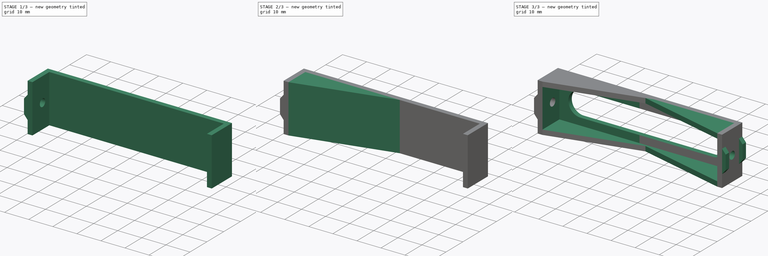
[diagram: build sequence overview — one tinted view per stage of 3, left to right]
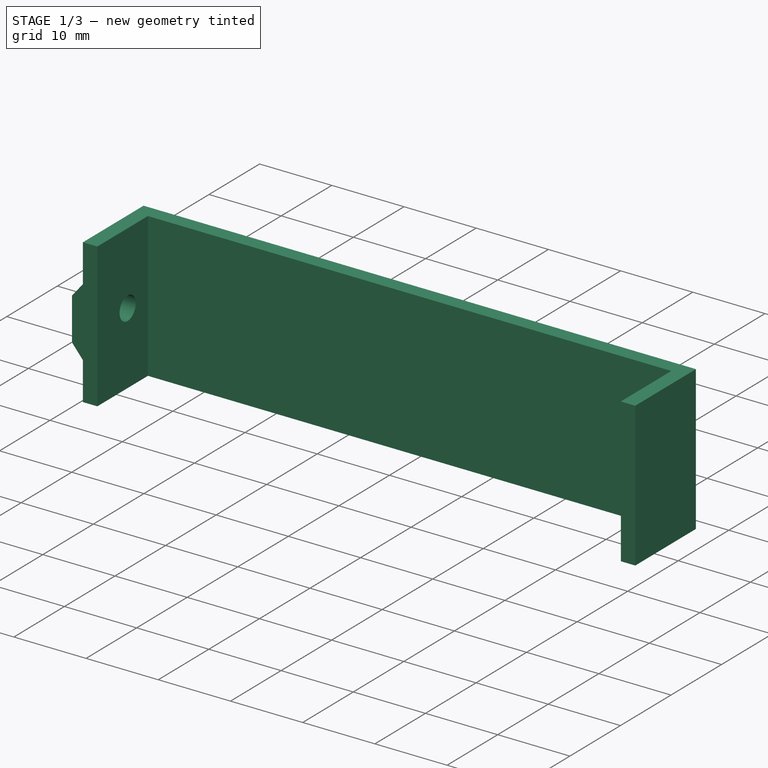
[diagram: stage 1 of 3 — iso view after this stage's code; geometry added in this stage tinted green]
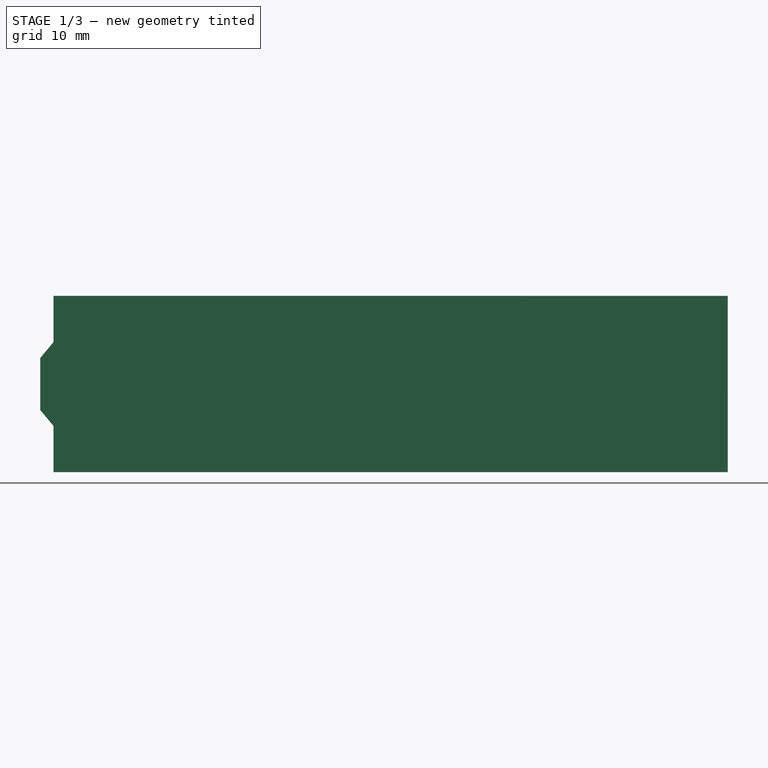
[diagram: stage 1 of 3 — front view after this stage's code; geometry added in this stage tinted green]
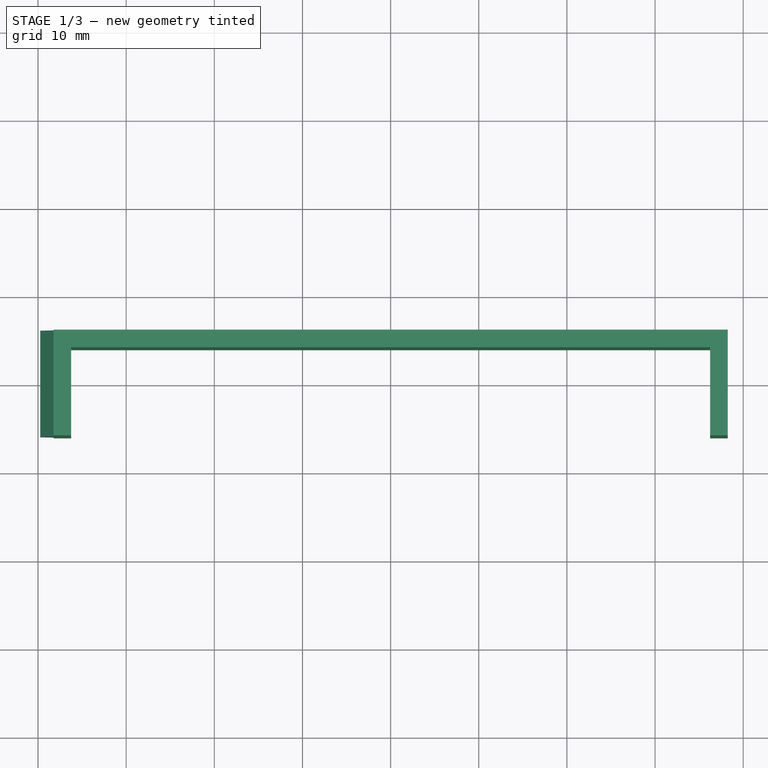
[diagram: stage 1 of 3 — top view after this stage's code; geometry added in this stage tinted green]
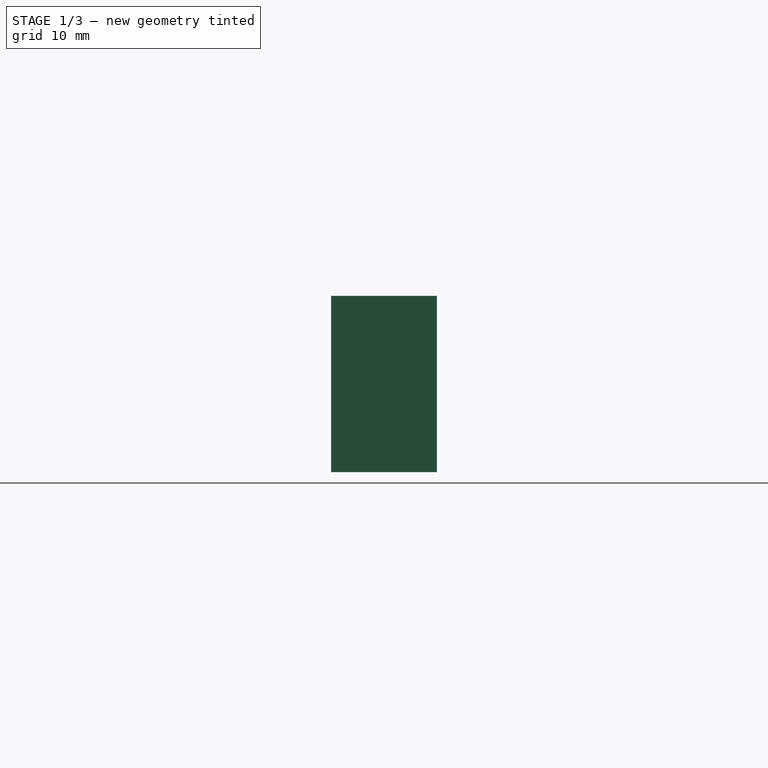
[diagram: stage 1 of 3 — right view after this stage's code; geometry added in this stage tinted green]
FCSTD DOCUMENT  (FreeCAD 1.1R44874 (Git))
Label: limitador
License: All rights reserved
LicenseURL: https://en.wikipedia.org/wiki/All_rights_reserved
objects: Sketcher::SketchObject×7, PartDesign::Pocket×4, PartDesign::Pad×3, PartDesign::Mirrored×1, PartDesign::Body×1, App::Point×1
note: 38 computed .brp shape members not serialized (recipe doc carries the construction recipe); baked Part::Feature solids carry a one-line shape summary decoded from their .brp

FEATURE [Sketcher::SketchObject] Sketch
  ArcFitTolerance = 0
  AttachmentSupport = -> [XY_Plane]
  ExternalTypes = [0]
  FullyConstrained = true
  MakeInternals = false
  MapMode = 5
  _ExternalGeoVersion = 0
  sketch-geometry (9):
    g0: LineSegment StartX=-36.25 StartY=-6 StartZ=0 EndX=-38.25 EndY=-6 EndZ=0
    g1: LineSegment StartX=-38.25 StartY=-6 StartZ=0 EndX=-38.25 EndY=6 EndZ=0
    g2: LineSegment StartX=-38.25 StartY=6 StartZ=0 EndX=38.25 EndY=6 EndZ=0
    g3: LineSegment StartX=38.25 StartY=6 StartZ=0 EndX=38.25 EndY=-6 EndZ=0
    g4: LineSegment StartX=38.25 StartY=-6 StartZ=0 EndX=36.25 EndY=-6 EndZ=0
    g5: LineSegment StartX=36.25 StartY=-6 StartZ=0 EndX=36.25 EndY=4 EndZ=0
    g6: LineSegment StartX=36.25 StartY=4 StartZ=0 EndX=-36.25 EndY=4 EndZ=0
    g7: LineSegment StartX=-36.25 StartY=4 StartZ=0 EndX=-36.25 EndY=-6 EndZ=0
    g8: LineSegment [constr] StartX=-36.25 StartY=4 StartZ=0 EndX=-36.25 EndY=6 EndZ=0
  constraints (24):
    c: Horizontal(g0)
    c: Coincident(g0,g1)
    c: Coincident(g1,g2)
    c: Coincident(g2,g3)
    c: Vertical(g3)
    c: Coincident(g3,g4)
    c: Horizontal(g4)
    c: Coincident(g4,g5)
    c: Coincident(g5,g6)
    c: Coincident(g6,g7)
    c: Vertical(g7)
    c: Coincident(g0,g7)
    c: Vertical(g5)
    c: Symmetric(g0,g1,g-1)
    c: Symmetric(g2,g1,g-2)
    c: Coincident(g8,g6)
    c: PointOnObject(g8,g2)
    c: Vertical(g8)
    c: Symmetric(g5,g6,g-2)
    c: Equal(g8,g0)
    c: Equal(g5,g7)
    c: DistanceY(g8,g8) = 2
    c: DistanceX(g0,g3) = 76.5
    c: Distance(g7) = 10
FEATURE [PartDesign::Pad] Pad
  Direction = (0,0,1)
  Length = 20
  Length2 = 10
  Profile = -> Sketch
  ReferenceAxis = -> Sketch [N_Axis]
  SideType = 0
  Suppressed = false
  Type = 0
  Type2 = 0
FEATURE [Sketcher::SketchObject] Sketch001
  ArcFitTolerance = 0
  AttachmentSupport = -> [Pad]
  ExternalGeometry = -> [Pad]
  ExternalTypes = [0]
  FullyConstrained = true
  MakeInternals = false
  MapMode = 5
  Placement = pos=(0,-6,0) rot=(1,0,0;1.5708rad)
  _ExternalGeoVersion = 0
  sketch-geometry (5):
    g0: LineSegment [constr] StartX=-38.25 StartY=10 StartZ=0 EndX=-39.75 EndY=10 EndZ=0
    g1: LineSegment StartX=-38.25 StartY=5.25 StartZ=0 EndX=-38.25 EndY=14.75 EndZ=0
    g2: LineSegment StartX=-38.25 StartY=14.75 StartZ=0 EndX=-39.75 EndY=12.95 EndZ=0
    g3: LineSegment StartX=-39.75 StartY=12.95 StartZ=0 EndX=-39.75 EndY=7.05 EndZ=0
    g4: LineSegment StartX=-39.75 StartY=7.05 StartZ=0 EndX=-38.25 EndY=5.25 EndZ=0
  constraints (13):
    c: Symmetric(g-3,g-3,g0)
    c: Coincident(g1,g2)
    c: Coincident(g2,g3)
    c: Coincident(g3,g4)
    c: Coincident(g4,g1)
    c: Symmetric(g1,g1,g0)
    c: Symmetric(g3,g2,g0)
    c: PointOnObject(g0,g1)
    c: PointOnObject(g0,g-3)
    c: PointOnObject(g0,g3)
    c: DistanceX(g2,g1) = 1.5
    c: DistanceY(g1,g1) = 9.5
    c: DistanceY(g3,g3) = 5.9
FEATURE [PartDesign::Pad] Pad001
  BaseFeature = -> Pad
  Direction = (0,-1,2e-16)
  Length = 10
  Length2 = 10
  Profile = -> Sketch001
  ReferenceAxis = -> Sketch001 [N_Axis]
  SideType = 0
  Suppressed = false
  Type = 3
  Type2 = 0
  UpToFace = -> Pad [Face3]
FEATURE [Sketcher::SketchObject] Sketch002
  ArcFitTolerance = 0
  AttachmentSupport = -> [Pad001]
  ExternalGeometry = -> [Pad001]
  ExternalTypes = [0]
  FullyConstrained = true
  MakeInternals = false
  MapMode = 5
  Placement = pos=(-39.75,0,0) rot=(0.57735,-0.57735,-0.57735;2.0944rad)
  _ExternalGeoVersion = 0
  sketch-geometry (2):
    g0: Circle CenterX=0 CenterY=10 CenterZ=0 NormalX=0 NormalY=0 NormalZ=1 AngleXU=0 Radius=1.6
    g1: LineSegment [constr] StartX=-6 StartY=10 StartZ=0 EndX=6 EndY=10 EndZ=0
  constraints (6):
    c: PointOnObject(g0,g-2)
    c: Symmetric(g-4,g-3,g1)
    c: PointOnObject(g0,g1)
    c: Vertical(g1,g-3)
    c: Vertical(g1,g-4)
    c: Diameter(g0) = 3.2
FEATURE [PartDesign::Pocket] Pocket
  BaseFeature = -> Pad001
  Direction = (1,0,0)
  Length = 0
  Length2 = 5
  Profile = -> Sketch002
  ReferenceAxis = -> Sketch002 [N_Axis]
  SideType = 0
  Suppressed = false
  Type = 3
  Type2 = 0
  UpToFace = -> Pad001 [Face2]
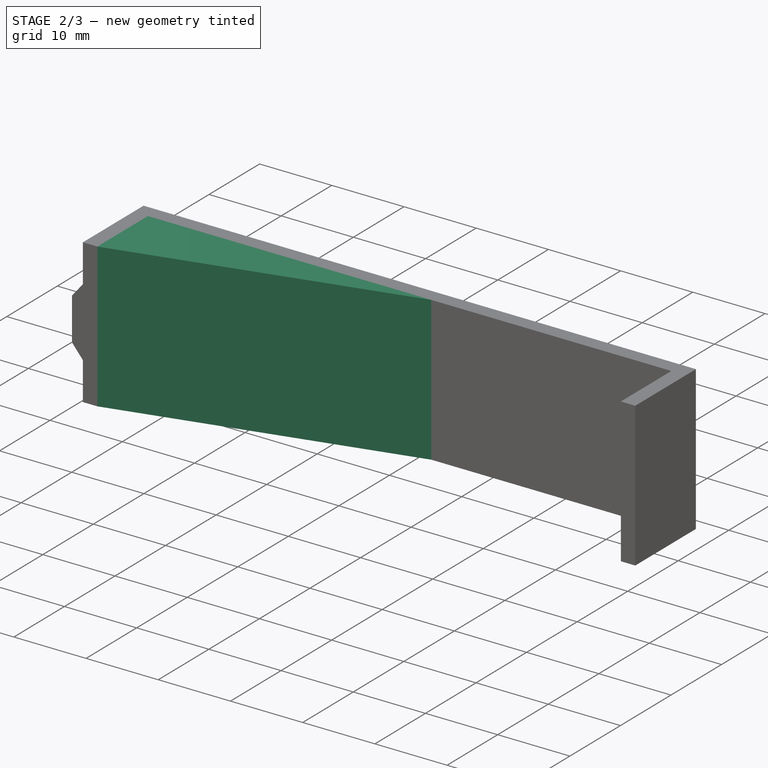
[diagram: stage 2 of 3 — iso view after this stage's code; geometry added in this stage tinted green]
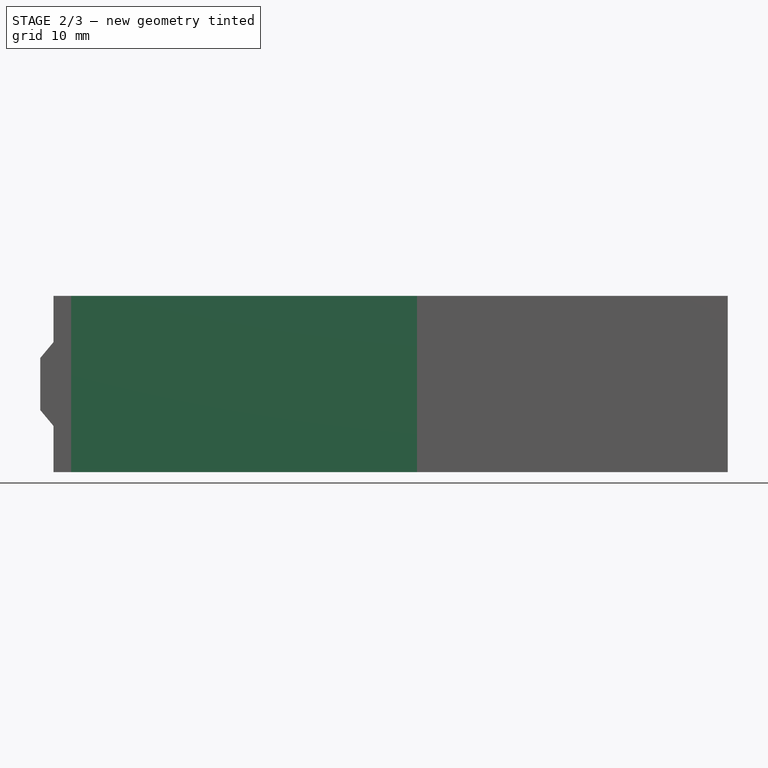
[diagram: stage 2 of 3 — front view after this stage's code; geometry added in this stage tinted green]
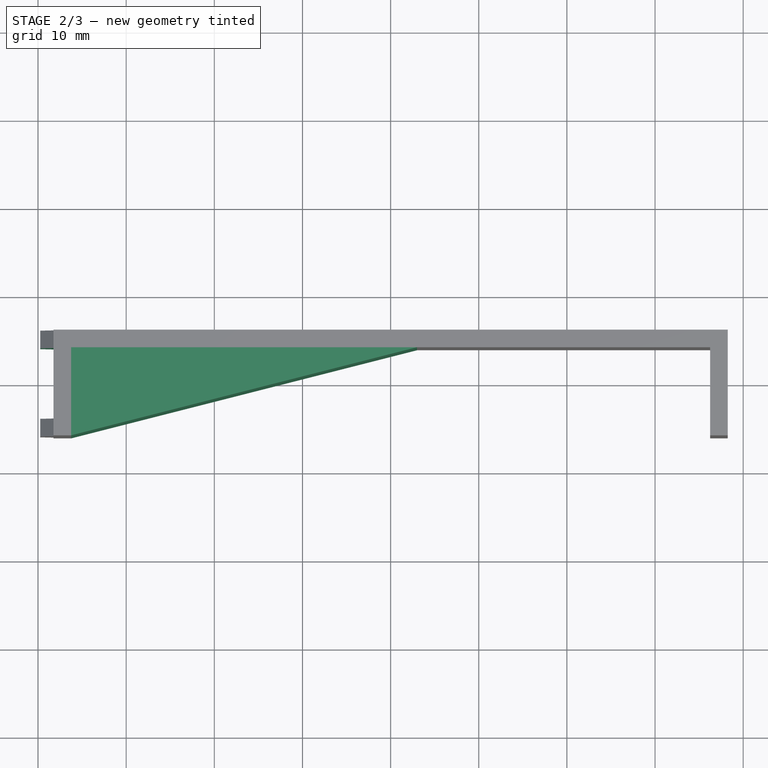
[diagram: stage 2 of 3 — top view after this stage's code; geometry added in this stage tinted green]
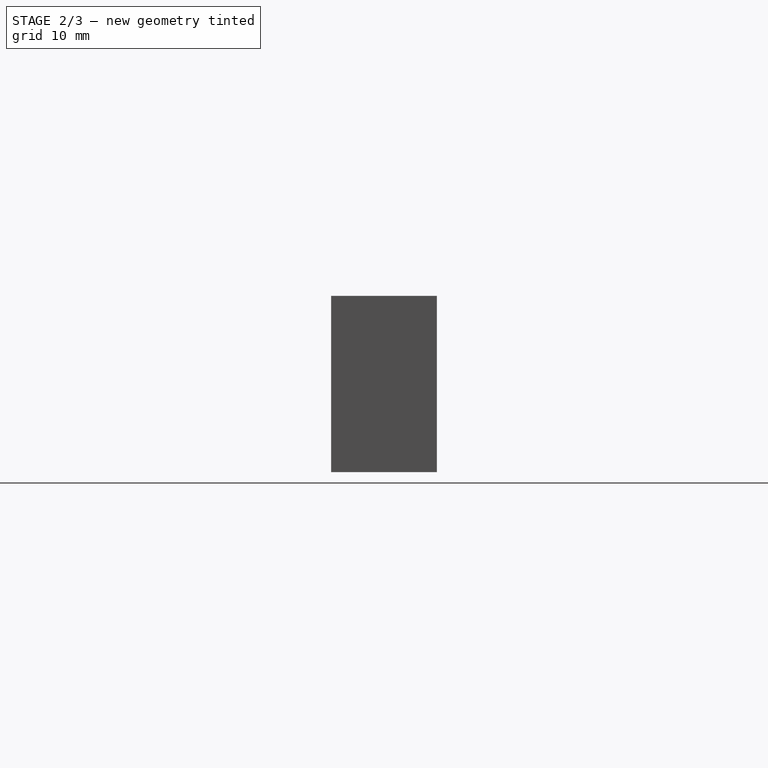
[diagram: stage 2 of 3 — right view after this stage's code; geometry added in this stage tinted green]
FEATURE [Sketcher::SketchObject] Sketch003
  ArcFitTolerance = 0
  AttachmentSupport = -> [Pocket]
  ExternalGeometry = -> [Pocket]
  ExternalTypes = [0]
  FullyConstrained = true
  MakeInternals = false
  MapMode = 5
  Placement = pos=(-39.75,0,0) rot=(0.57735,-0.57735,-0.57735;2.0944rad)
  _ExternalGeoVersion = 0
  sketch-geometry (5):
    g0: Circle [constr] CenterX=0 CenterY=10 CenterZ=0 NormalX=0 NormalY=0 NormalZ=1 AngleXU=0 Radius=4.75
    g1: LineSegment StartX=-4 StartY=14.75 StartZ=0 EndX=4 EndY=14.75 EndZ=0
    g2: LineSegment StartX=4 StartY=14.75 StartZ=0 EndX=4 EndY=5.25 EndZ=0
    g3: LineSegment StartX=4 StartY=5.25 StartZ=0 EndX=-4 EndY=5.25 EndZ=0
    g4: LineSegment StartX=-4 StartY=5.25 StartZ=0 EndX=-4 EndY=14.75 EndZ=0
  constraints (13):
    c: Coincident(g1,g2)
    c: Coincident(g2,g3)
    c: Coincident(g3,g4)
    c: Coincident(g4,g1)
    c: Horizontal(g3)
    c: Vertical(g2)
    c: Vertical(g4)
    c: Tangent(g1,g0)
    c: Coincident(g0,g-4)
    c: Symmetric(g1,g1,g-2)
    c: Tangent(g0,g-3)
    c: DistanceX(g-3,g3) = 2
    c: Tangent(g0,g3)
FEATURE [PartDesign::Pocket] Pocket001
  BaseFeature = -> Pocket
  Direction = (1,0,0)
  Length = 0
  Length2 = 5
  Profile = -> Sketch003
  ReferenceAxis = -> Sketch003 [N_Axis]
  SideType = 0
  Suppressed = false
  Type = 3
  Type2 = 0
  UpToFace = -> Pocket [Face5]
FEATURE [Sketcher::SketchObject] Sketch004
  ArcFitTolerance = 0
  AttachmentSupport = -> [Pocket001]
  ExternalGeometry = -> [Pocket001]
  ExternalTypes = [0]
  FullyConstrained = true
  MakeInternals = false
  MapMode = 5
  Placement = pos=(0,0,0) rot=(1,0,0;3.14159rad)
  _ExternalGeoVersion = 0
  sketch-geometry (3):
    g0: LineSegment StartX=-36.25 StartY=-4 StartZ=0 EndX=-36.25 EndY=6 EndZ=0
    g1: LineSegment StartX=-36.25 StartY=6 StartZ=0 EndX=3 EndY=-4 EndZ=0
    g2: LineSegment StartX=3 StartY=-4 StartZ=0 EndX=-36.25 EndY=-4 EndZ=0
  constraints (7):
    c: Coincident(g0,g1)
    c: Coincident(g1,g2)
    c: Coincident(g2,g0)
    c: Horizontal(g2)
    c: Coincident(g0,g-4)
    c: Coincident(g0,g-3)
    c: DistanceX(g-1,g1) = 3
FEATURE [PartDesign::Pad] Pad002
  BaseFeature = -> Pocket001
  Direction = (0,0,-1)
  Length = 10
  Length2 = 10
  Profile = -> Sketch004
  ReferenceAxis = -> Sketch004 [N_Axis]
  SideType = 0
  Suppressed = false
  Type = 3
  Type2 = 0
  UpToFace = -> Pocket001 [Face7]
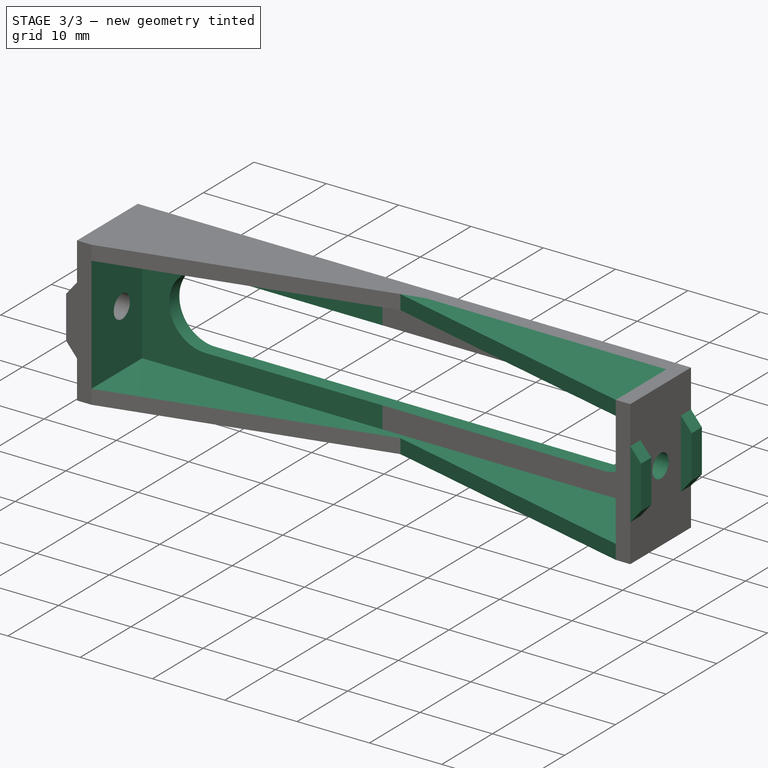
[diagram: stage 3 of 3 — iso view after this stage's code; geometry added in this stage tinted green]
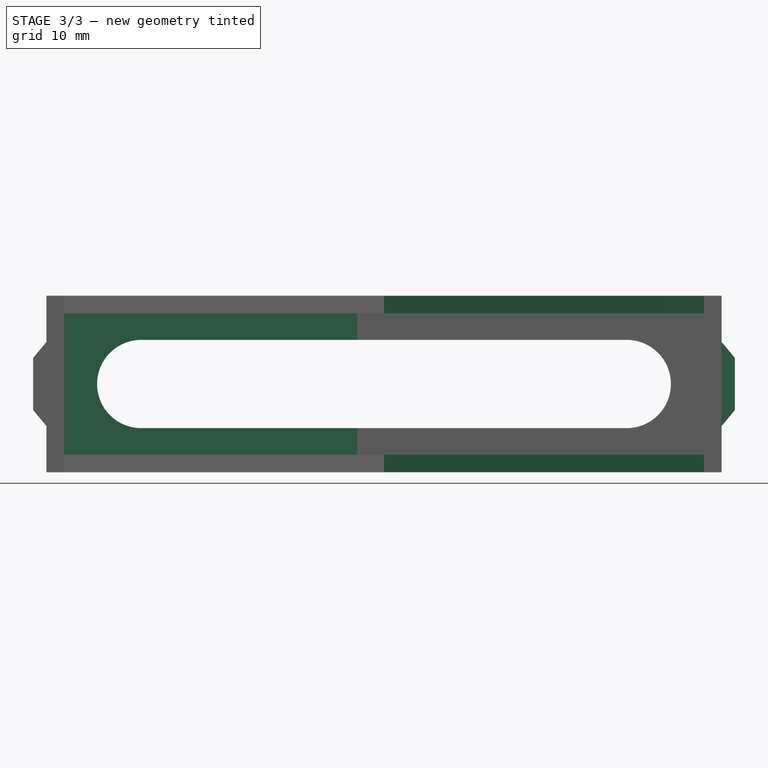
[diagram: stage 3 of 3 — front view after this stage's code; geometry added in this stage tinted green]
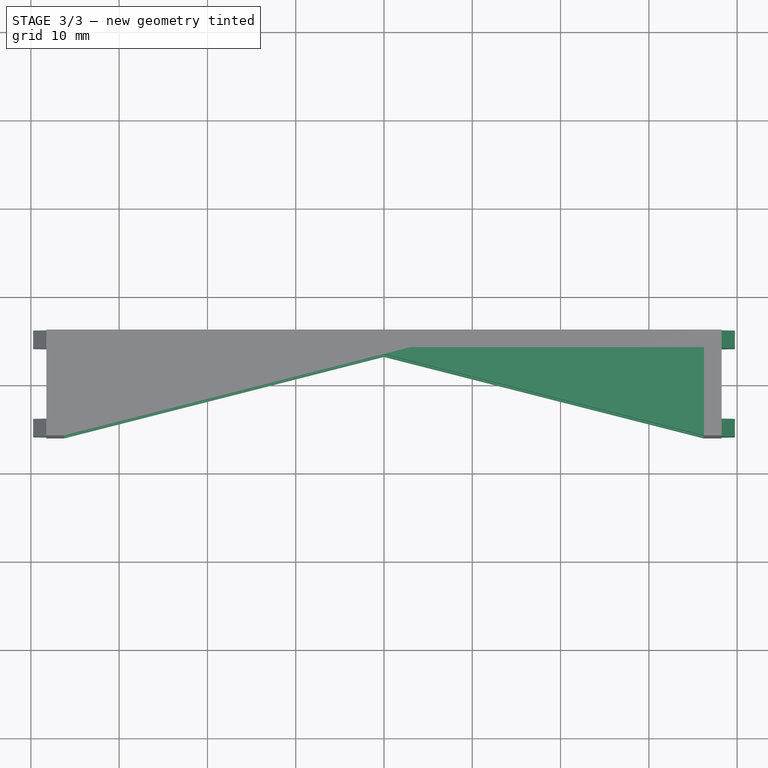
[diagram: stage 3 of 3 — top view after this stage's code; geometry added in this stage tinted green]
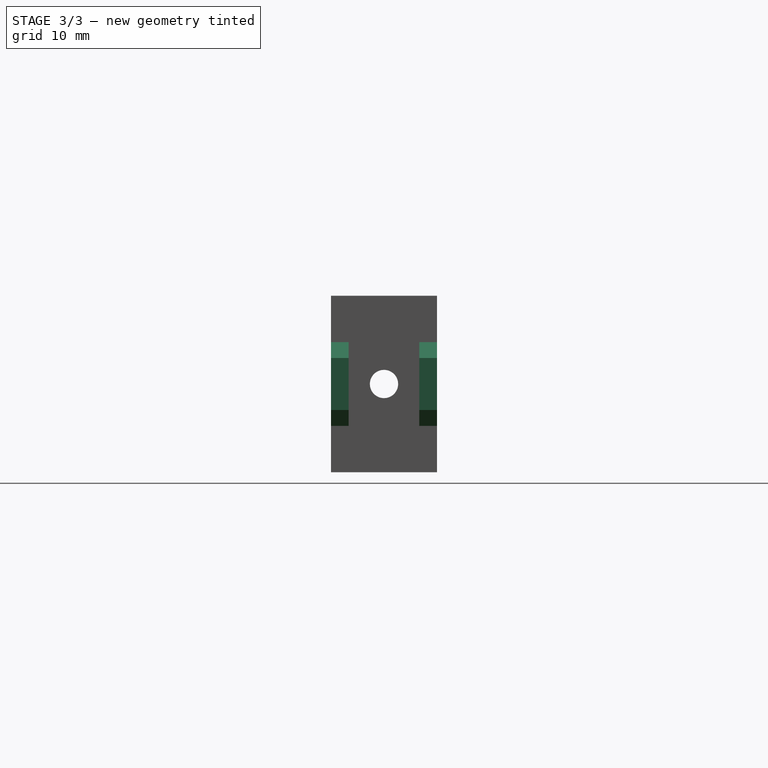
[diagram: stage 3 of 3 — right view after this stage's code; geometry added in this stage tinted green]
FEATURE [Sketcher::SketchObject] Sketch005
  ArcFitTolerance = 0
  AttachmentSupport = -> [Pad002]
  ExternalGeometry = -> [Pad002]
  ExternalTypes = [0]
  FullyConstrained = true
  MakeInternals = false
  MapMode = 5
  Placement = pos=(0,-6,0) rot=(1,0,0;1.5708rad)
  _ExternalGeoVersion = 0
  sketch-geometry (5):
    g0: LineSegment StartX=-36.25 StartY=18 StartZ=0 EndX=3 EndY=18 EndZ=0
    g1: LineSegment StartX=3 StartY=18 StartZ=0 EndX=3 EndY=2 EndZ=0
    g2: LineSegment StartX=3 StartY=2 StartZ=0 EndX=-36.25 EndY=2 EndZ=0
    g3: LineSegment StartX=-36.25 StartY=2 StartZ=0 EndX=-36.25 EndY=18 EndZ=0
    g4: LineSegment [constr] StartX=3 StartY=10 StartZ=0 EndX=-36.25 EndY=10 EndZ=0
  constraints (14):
    c: Coincident(g0,g1)
    c: Coincident(g1,g2)
    c: Coincident(g2,g3)
    c: Coincident(g3,g0)
    c: Horizontal(g0)
    c: Horizontal(g2)
    c: Vertical(g1)
    c: PointOnObject(g0,g-3)
    c: Symmetric(g2,g0,g4)
    c: Symmetric(g-3,g-3,g4)
    c: PointOnObject(g4,g-3)
    c: DistanceY(g0,g-3) = 2
    c: PointOnObject(g4,g-4)
    c: PointOnObject(g4,g1)
FEATURE [PartDesign::Pocket] Pocket002
  BaseFeature = -> Pad002
  Direction = (0,1,-2e-16)
  Length = 0
  Length2 = 5
  Profile = -> Sketch005
  ReferenceAxis = -> Sketch005 [N_Axis]
  SideType = 0
  Suppressed = false
  Type = 3
  Type2 = 0
  UpToFace = -> Pad002 [Face9]
FEATURE [PartDesign::Mirrored] Mirrored
  BaseFeature = -> Pocket002
  MirrorPlane = -> YZ_Plane
  Originals = -> [Pad001,Pocket,Pocket001,Pad002,Pocket002]
  Suppressed = false
  TransformMode = 0
FEATURE [Sketcher::SketchObject] Sketch006
  ArcFitTolerance = 0
  AttachmentSupport = -> [Mirrored]
  ExternalGeometry = -> [Mirrored]
  ExternalTypes = [0]
  FullyConstrained = true
  MakeInternals = false
  MapMode = 5
  Placement = pos=(9e-16,4,0) rot=(1,0,0;1.5708rad)
  _ExternalGeoVersion = 0
  sketch-geometry (5):
    g0: ArcOfCircle CenterX=-27.5 CenterY=10 CenterZ=0 NormalX=0 NormalY=0 NormalZ=1 AngleXU=0 Radius=5 StartAngle=1.5708 EndAngle=4.71239
    g1: ArcOfCircle CenterX=27.5 CenterY=10 CenterZ=0 NormalX=0 NormalY=0 NormalZ=1 AngleXU=0 Radius=5 StartAngle=4.71239 EndAngle=7.85398
    g2: LineSegment StartX=-27.5 StartY=5 StartZ=0 EndX=27.5 EndY=5 EndZ=0
    g3: LineSegment StartX=27.5 StartY=15 StartZ=0 EndX=-27.5 EndY=15 EndZ=0
    g4: LineSegment [constr] StartX=-27.5 StartY=10 StartZ=0 EndX=27.5 EndY=10 EndZ=0
  constraints (11):
    c: Tangent(g0,g2) = -1.5708
    c: Tangent(g2,g1) = -1.5708
    c: Tangent(g1,g3) = -1.5708
    c: Tangent(g3,g0) = -1.5708
    c: Equal(g0,g1)
    c: Symmetric(g1,g0,g-2)
    c: Coincident(g4,g0)
    c: Coincident(g4,g1)
    c: Symmetric(g-3,g-3,g4)
    c: DistanceY(g0,g-3) = 3
    c: DistanceX(g4,g4) = 55
FEATURE [PartDesign::Pocket] Pocket003
  BaseFeature = -> Mirrored
  Direction = (2e-16,1,-2e-16)
  Length = 0
  Length2 = 5
  Profile = -> Sketch006
  ReferenceAxis = -> Sketch006 [N_Axis]
  SideType = 0
  Suppressed = false
  Type = 3
  Type2 = 0
  UpToFace = -> Mirrored [Face19]
FEATURE [PartDesign::Body] Body
  AllowCompound = false
  Group = -> [Sketch,Pad,Sketch001,Pad001,Sketch002,Pocket,Sketch003,Pocket001,Sketch004,Pad002,Sketch005,Pocket002,Mirrored,Sketch006,Pocket003]
  Origin = -> Origin
  Tip = -> Pocket003
FEATURE [App::Point] Origin001  label="Origem"
  Role = Origin
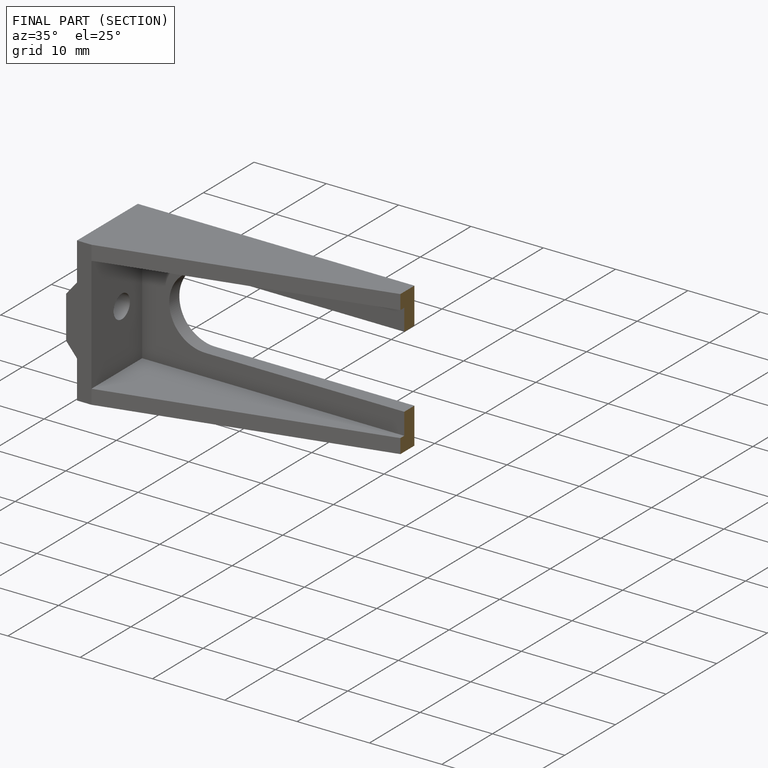
[diagram: finished part — half-section view (interior)]
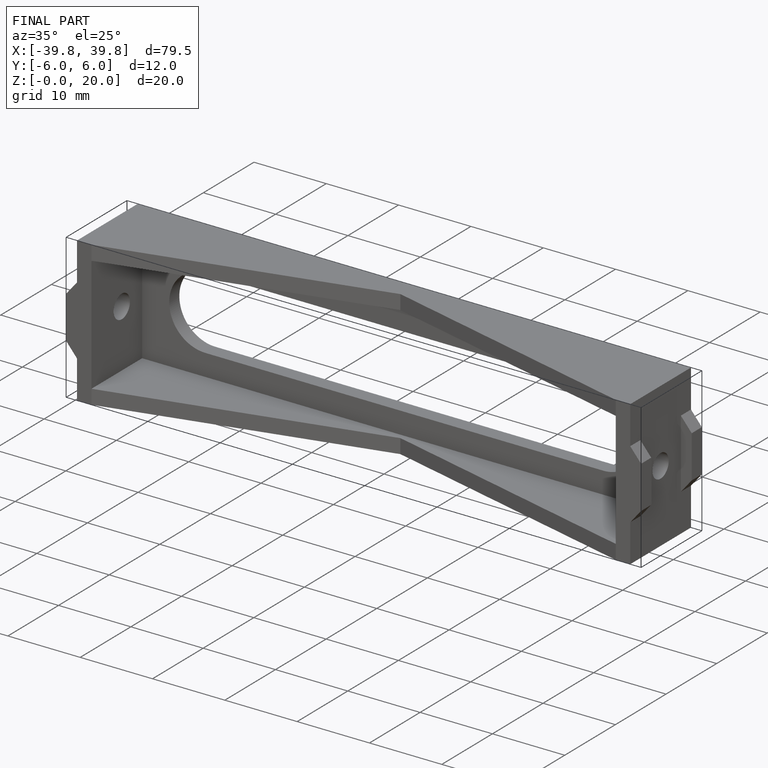
[diagram: finished part — iso view with bounding-box wireframe]
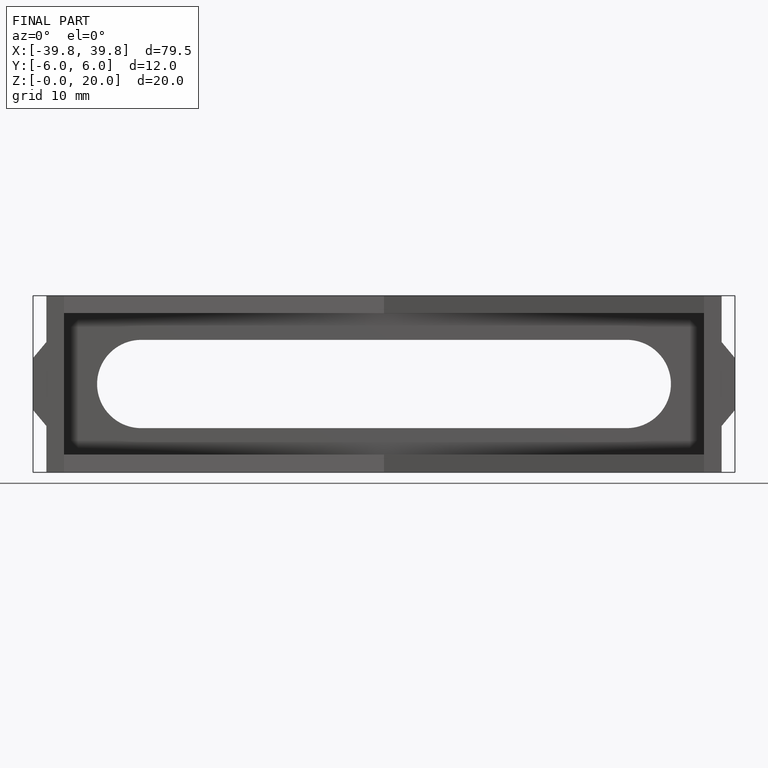
[diagram: finished part — front view with bounding-box wireframe]
